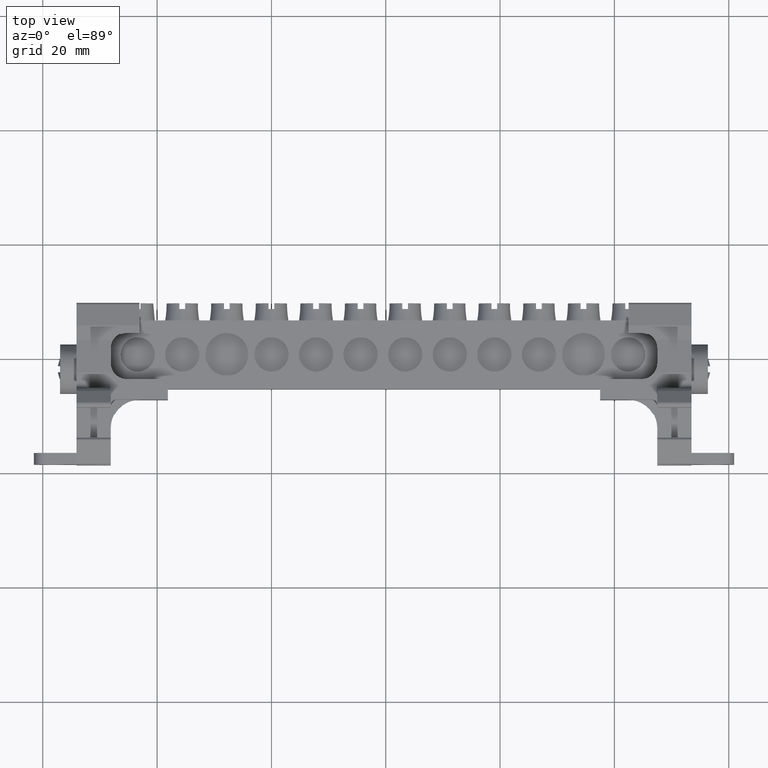
[diagram: clean part render]
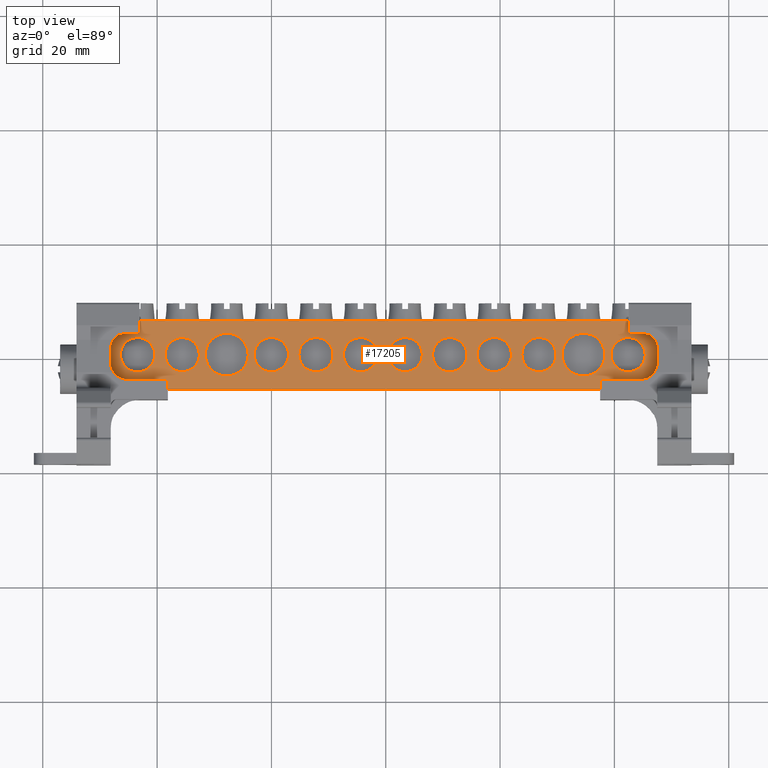
[diagram: same view with one face highlighted and labeled with its STEP entity id]
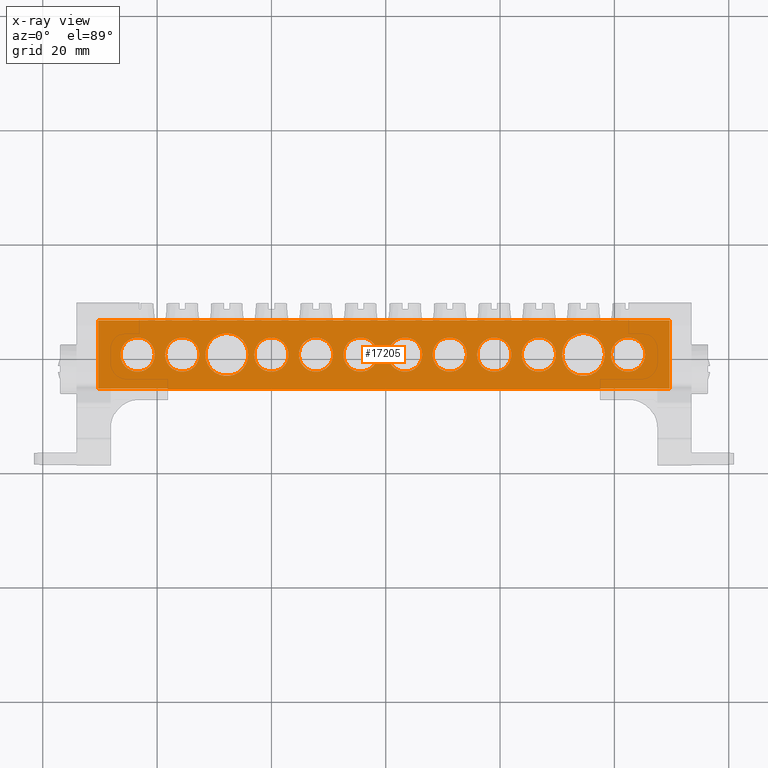
[diagram: x-ray of the same camera — body ghosted, the highlighted face saturated]
A machine part, top view. The second image highlights one B-rep face of the part: STEP entity #17205.
The next image is the same camera in x-ray: the body ghosted, the highlighted face saturated — about 0% of this face is hidden behind the body in this view.
In plain terms, the highlighted planar face has unit normal (0, 0, -1).
Its self-contained STEP definition (entity closure, byte-faithful):
#1337 = CIRCLE ( 'NONE', #1354, 3.000000000000002700 ) ;
#1348 = CIRCLE ( 'NONE', #1349, 3.000000000000002700 ) ;
#1349 = AXIS2_PLACEMENT_3D ( 'NONE', #1574, #1576, #1609 ) ;
#1352 = CIRCLE ( 'NONE', #1355, 3.750000000000003600 ) ;
#1354 = AXIS2_PLACEMENT_3D ( 'NONE', #1610, #1600, #1587 ) ;
#1355 = AXIS2_PLACEMENT_3D ( 'NONE', #1598, #1616, #1604 ) ;
#1378 = CIRCLE ( 'NONE', #1379, 2.999999999999988900 ) ;
#1379 = AXIS2_PLACEMENT_3D ( 'NONE', #1647, #1644, #1634 ) ;
#1387 = AXIS2_PLACEMENT_3D ( 'NONE', #1650, #1627, #1623 ) ;
#1400 = CIRCLE ( 'NONE', #1387, 3.000000000000002700 ) ;
#1402 = AXIS2_PLACEMENT_3D ( 'NONE', #1660, #1661, #1676 ) ;
#1412 = AXIS2_PLACEMENT_3D ( 'NONE', #1696, #1672, #1678 ) ;
#1416 = CIRCLE ( 'NONE', #1402, 3.000000000000002700 ) ;
#1425 = CIRCLE ( 'NONE', #1412, 3.000000000000002700 ) ;
#1574 = CARTESIAN_POINT ( 'NONE',  ( -100.0053964936863900, -39.46391012921964900, 99.25723811290720300 ) ) ;
#1576 = DIRECTION ( 'NONE',  ( 0.0000000000000000000, 0.0000000000000000000, 1.000000000000000000 ) ) ;
#1587 = DIRECTION ( 'NONE',  ( -1.000000000000000000, 0.0000000000000000000, 0.0000000000000000000 ) ) ;
#1598 = CARTESIAN_POINT ( 'NONE',  ( -107.8053964936864000, -39.46391012921964900, 99.25723811290720300 ) ) ;
#1600 = DIRECTION ( 'NONE',  ( 0.0000000000000000000, 0.0000000000000000000, 1.000000000000000000 ) ) ;
#1604 = DIRECTION ( 'NONE',  ( 1.000000000000000000, 0.0000000000000000000, 0.0000000000000000000 ) ) ;
#1609 = DIRECTION ( 'NONE',  ( -1.000000000000000000, 0.0000000000000000000, 0.0000000000000000000 ) ) ;
#1610 = CARTESIAN_POINT ( 'NONE',  ( -92.20539649368639300, -39.46391012921964900, 99.25723811290720300 ) ) ;
#1616 = DIRECTION ( 'NONE',  ( 0.0000000000000000000, 0.0000000000000000000, 1.000000000000000000 ) ) ;
#1623 = DIRECTION ( 'NONE',  ( 1.000000000000000000, 0.0000000000000000000, 0.0000000000000000000 ) ) ;
#1627 = DIRECTION ( 'NONE',  ( 0.0000000000000000000, 0.0000000000000000000, 1.000000000000000000 ) ) ;
#1634 = DIRECTION ( 'NONE',  ( 1.000000000000000000, 0.0000000000000000000, 4.625929269271502700E-015 ) ) ;
#1644 = DIRECTION ( 'NONE',  ( -4.941704111849990700E-015, -5.494598894041890000E-029, 1.000000000000000000 ) ) ;
#1647 = CARTESIAN_POINT ( 'NONE',  ( -123.4053964936861500, -39.46391012922060100, 99.25723811290699000 ) ) ;
#1650 = CARTESIAN_POINT ( 'NONE',  ( -115.6053964936864000, -39.46391012921964900, 99.25723811290720300 ) ) ;
#1660 = CARTESIAN_POINT ( 'NONE',  ( -37.60539649368644200, -39.46391012921964900, 99.25723811290720300 ) ) ;
#1661 = DIRECTION ( 'NONE',  ( 0.0000000000000000000, 0.0000000000000000000, 1.000000000000000000 ) ) ;
#1672 = DIRECTION ( 'NONE',  ( 0.0000000000000000000, 0.0000000000000000000, 1.000000000000000000 ) ) ;
#1676 = DIRECTION ( 'NONE',  ( 1.000000000000000000, 0.0000000000000000000, 0.0000000000000000000 ) ) ;
#1678 = DIRECTION ( 'NONE',  ( -1.000000000000000000, 0.0000000000000000000, 0.0000000000000000000 ) ) ;
#1696 = CARTESIAN_POINT ( 'NONE',  ( -76.60539649368639900, -39.46391012921964900, 99.25723811290720300 ) ) ;
#1702 = CARTESIAN_POINT ( 'NONE',  ( -89.20539649368639300, -39.46391012921964900, 99.25723811290720300 ) ) ;
#1715 = CARTESIAN_POINT ( 'NONE',  ( -79.60539649368639900, -39.46391012921964900, 99.25723811290720300 ) ) ;
#1755 = CARTESIAN_POINT ( 'NONE',  ( -95.20539649368639300, -39.46391012921964900, 99.25723811290720300 ) ) ;
#1777 = CARTESIAN_POINT ( 'NONE',  ( -81.40539649368642500, -39.46391012921964900, 99.25723811290720300 ) ) ;
#1778 = CARTESIAN_POINT ( 'NONE',  ( -73.60539649368639900, -39.46391012921964900, 99.25723811290720300 ) ) ;
#1779 = CARTESIAN_POINT ( 'NONE',  ( -97.00539649368639100, -39.46391012921964900, 99.25723811290720300 ) ) ;
#1782 = CARTESIAN_POINT ( 'NONE',  ( -87.40539649368643900, -39.46391012921964900, 99.25723811290720300 ) ) ;
#1786 = CARTESIAN_POINT ( 'NONE',  ( -118.6053964936864000, -39.46391012921964900, 99.25723811290720300 ) ) ;
#1789 = CARTESIAN_POINT ( 'NONE',  ( -65.80539649368640200, -39.46391012921964900, 99.25723811290720300 ) ) ;
#1792 = CARTESIAN_POINT ( 'NONE',  ( -71.80539649368640200, -39.46391012921964900, 99.25723811290720300 ) ) ;
#1796 = CARTESIAN_POINT ( 'NONE',  ( -34.60539649368644200, -39.46391012921964900, 99.25723811290720300 ) ) ;
#1814 = CARTESIAN_POINT ( 'NONE',  ( -56.20539649368640100, -39.46391012921964900, 99.25723811290720300 ) ) ;
#1829 = CARTESIAN_POINT ( 'NONE',  ( -126.4053964936861500, -39.46391012922060100, 99.25723811290697500 ) ) ;
#1835 = CARTESIAN_POINT ( 'NONE',  ( -40.60539649368644900, -39.46391012921964900, 99.25723811290720300 ) ) ;
#1836 = CARTESIAN_POINT ( 'NONE',  ( -41.65539649368639600, -39.46391012921964900, 99.25723811290720300 ) ) ;
#1838 = CARTESIAN_POINT ( 'NONE',  ( -112.6053964936864000, -39.46391012921964900, 99.25723811290720300 ) ) ;
#1845 = CARTESIAN_POINT ( 'NONE',  ( -104.0553964936864000, -39.46391012921964900, 99.25723811290720300 ) ) ;
#1849 = CARTESIAN_POINT ( 'NONE',  ( -111.5553964936864200, -39.46391012921964900, 99.25723811290720300 ) ) ;
#1851 = CARTESIAN_POINT ( 'NONE',  ( -64.00539649368640500, -39.46391012921964900, 99.25723811290720300 ) ) ;
#1856 = CARTESIAN_POINT ( 'NONE',  ( -103.0053964936863900, -39.46391012921964900, 99.25723811290720300 ) ) ;
#1869 = CARTESIAN_POINT ( 'NONE',  ( -120.4053964936861500, -39.46391012922060100, 99.25723811290700400 ) ) ;
#1873 = CARTESIAN_POINT ( 'NONE',  ( -49.15539649368640300, -39.46391012921964900, 99.25723811290720300 ) ) ;
#1920 = CARTESIAN_POINT ( 'NONE',  ( -50.20539649368639300, -39.46391012921964900, 99.25723811290720300 ) ) ;
#1930 = CARTESIAN_POINT ( 'NONE',  ( -58.00539649368639800, -39.46391012921964900, 99.25723811290720300 ) ) ;
#2708 = CARTESIAN_POINT ( 'NONE',  ( -61.00539649368639800, -39.46391012921964900, 99.25723811290720300 ) ) ;
#2738 = DIRECTION ( 'NONE',  ( 0.0000000000000000000, 0.0000000000000000000, 1.000000000000000000 ) ) ;
#2756 = DIRECTION ( 'NONE',  ( -1.000000000000000000, 0.0000000000000000000, 0.0000000000000000000 ) ) ;
#2764 = DIRECTION ( 'NONE',  ( 0.0000000000000000000, 0.0000000000000000000, 1.000000000000000000 ) ) ;
#2768 = CARTESIAN_POINT ( 'NONE',  ( -53.20539649368640100, -39.46391012921964900, 99.25723811290720300 ) ) ;
#2798 = DIRECTION ( 'NONE',  ( 1.000000000000000000, 0.0000000000000000000, 0.0000000000000000000 ) ) ;
#2810 = CARTESIAN_POINT ( 'NONE',  ( -84.40539649368643900, -39.46391012921964900, 99.25723811290720300 ) ) ;
#2844 = DIRECTION ( 'NONE',  ( 0.0000000000000000000, 0.0000000000000000000, 1.000000000000000000 ) ) ;
#2846 = DIRECTION ( 'NONE',  ( -1.000000000000000000, 0.0000000000000000000, 0.0000000000000000000 ) ) ;
#2853 = DIRECTION ( 'NONE',  ( 1.000000000000000000, 0.0000000000000000000, 0.0000000000000000000 ) ) ;
#2870 = CARTESIAN_POINT ( 'NONE',  ( -45.40539649368639600, -39.46391012921964900, 99.25723811290720300 ) ) ;
#2872 = DIRECTION ( 'NONE',  ( 0.0000000000000000000, 0.0000000000000000000, 1.000000000000000000 ) ) ;
#3945 = CIRCLE ( 'NONE', #3972, 3.000000000000002700 ) ;
#3972 = AXIS2_PLACEMENT_3D ( 'NONE', #11579, #11573, #11576 ) ;
#4788 = CARTESIAN_POINT ( 'NONE',  ( -42.50539649368585800, -45.09798989761807100, 99.25723811290720300 ) ) ;
#4793 = LINE ( 'NONE', #4788, #23720 ) ;
#4796 = DIRECTION ( 'NONE',  ( 1.100161628464490100E-014, -1.000000000000000000, 0.0000000000000000000 ) ) ;
#4798 = CARTESIAN_POINT ( 'NONE',  ( -100.0053964936863900, -39.46391012921964900, 99.25723811290720300 ) ) ;
#4801 = DIRECTION ( 'NONE',  ( 0.0000000000000000000, 0.0000000000000000000, 1.000000000000000000 ) ) ;
#4820 = DIRECTION ( 'NONE',  ( -1.000000000000000000, 0.0000000000000000000, 0.0000000000000000000 ) ) ;
#4838 = DIRECTION ( 'NONE',  ( -1.000000000000000000, 0.0000000000000000000, 0.0000000000000000000 ) ) ;
#4848 = DIRECTION ( 'NONE',  ( 0.0000000000000000000, 0.0000000000000000000, 1.000000000000000000 ) ) ;
#4850 = DIRECTION ( 'NONE',  ( 0.0000000000000000000, 0.0000000000000000000, 1.000000000000000000 ) ) ;
#4852 = LINE ( 'NONE', #4875, #23708 ) ;
#4855 = CARTESIAN_POINT ( 'NONE',  ( -107.8053964936864000, -39.46391012921964900, 99.25723811290720300 ) ) ;
#4860 = DIRECTION ( 'NONE',  ( 1.000000000000000000, 0.0000000000000000000, 0.0000000000000000000 ) ) ;
#4862 = CARTESIAN_POINT ( 'NONE',  ( -68.80539649368640200, -39.46391012921964900, 99.25723811290720300 ) ) ;
#4866 = DIRECTION ( 'NONE',  ( -1.000000000000000000, 0.0000000000000000000, -4.941704111849990700E-015 ) ) ;
#4875 = CARTESIAN_POINT ( 'NONE',  ( -69.80539649368628800, -45.45958989761835100, 99.25723811290724500 ) ) ;
#4879 = DIRECTION ( 'NONE',  ( -1.000000000000000000, 0.0000000000000000000, 0.0000000000000000000 ) ) ;
#4887 = DIRECTION ( 'NONE',  ( 0.0000000000000000000, 0.0000000000000000000, 1.000000000000000000 ) ) ;
#4888 = DIRECTION ( 'NONE',  ( -1.000000000000000000, 0.0000000000000000000, 0.0000000000000000000 ) ) ;
#4889 = CARTESIAN_POINT ( 'NONE',  ( -130.3053964936860600, -33.46391012921941400, 99.25723811290694700 ) ) ;
#4890 = DIRECTION ( 'NONE',  ( -2.715268194765322000E-043, 1.000000000000000000, 5.494598894041890000E-029 ) ) ;
#4893 = DIRECTION ( 'NONE',  ( -4.941704111849990700E-015, -5.494598894041890000E-029, 1.000000000000000000 ) ) ;
#4896 = CARTESIAN_POINT ( 'NONE',  ( -123.4053964936861500, -39.46391012922060100, 99.25723811290699000 ) ) ;
#4900 = CARTESIAN_POINT ( 'NONE',  ( -76.60539649368639900, -39.46391012921964900, 99.25723811290720300 ) ) ;
#4914 = DIRECTION ( 'NONE',  ( 1.000000000000000000, 0.0000000000000000000, 0.0000000000000000000 ) ) ;
#4915 = CARTESIAN_POINT ( 'NONE',  ( -84.40539649368643900, -39.46391012921964900, 99.25723811290720300 ) ) ;
#4916 = LINE ( 'NONE', #4889, #23679 ) ;
#4917 = DIRECTION ( 'NONE',  ( 0.0000000000000000000, 0.0000000000000000000, 1.000000000000000000 ) ) ;
#4919 = DIRECTION ( 'NONE',  ( 0.0000000000000000000, 0.0000000000000000000, 1.000000000000000000 ) ) ;
#4921 = CARTESIAN_POINT ( 'NONE',  ( -45.40539649368639600, -39.46391012921964900, 99.25723811290720300 ) ) ;
#4922 = DIRECTION ( 'NONE',  ( 1.000000000000000000, 0.0000000000000000000, 4.625929269271502700E-015 ) ) ;
#9744 = EDGE_CURVE ( 'NONE', #10948, #10944, #3945, .T. ) ;
#10061 = EDGE_CURVE ( 'NONE', #10978, #10900, #1348, .T. ) ;
#10064 = EDGE_CURVE ( 'NONE', #10961, #10882, #1337, .T. ) ;
#10065 = EDGE_CURVE ( 'NONE', #11001, #10982, #1352, .T. ) ;
#10074 = EDGE_CURVE ( 'NONE', #10965, #10993, #1378, .T. ) ;
#10079 = EDGE_CURVE ( 'NONE', #10897, #10995, #1400, .T. ) ;
#10087 = EDGE_CURVE ( 'NONE', #10985, #10952, #1416, .T. ) ;
#10093 = EDGE_CURVE ( 'NONE', #10888, #10921, #1425, .T. ) ;
#10133 = EDGE_LOOP ( 'NONE', ( #19084, #19085 ) ) ;
#10134 = EDGE_LOOP ( 'NONE', ( #19200, #19110 ) ) ;
#10140 = EDGE_LOOP ( 'NONE', ( #19046, #19087 ) ) ;
#10146 = EDGE_LOOP ( 'NONE', ( #19039, #19047 ) ) ;
#10155 = EDGE_LOOP ( 'NONE', ( #19151, #19076 ) ) ;
#10157 = EDGE_LOOP ( 'NONE', ( #19149, #19100, #19106, #19142, #19153, #19188, #19098, #19108 ) ) ;
#10162 = EDGE_LOOP ( 'NONE', ( #19034, #19072 ) ) ;
#10167 = EDGE_LOOP ( 'NONE', ( #19154, #19137 ) ) ;
#10170 = EDGE_LOOP ( 'NONE', ( #19038, #19033 ) ) ;
#10177 = EDGE_LOOP ( 'NONE', ( #19141, #19109 ) ) ;
#10186 = EDGE_LOOP ( 'NONE', ( #19030, #19058 ) ) ;
#10196 = EDGE_LOOP ( 'NONE', ( #19052, #19152 ) ) ;
#10213 = EDGE_LOOP ( 'NONE', ( #19081, #19082 ) ) ;
#10882 = VERTEX_POINT ( 'NONE', #1702 ) ;
#10888 = VERTEX_POINT ( 'NONE', #1715 ) ;
#10897 = VERTEX_POINT ( 'NONE', #1786 ) ;
#10900 = VERTEX_POINT ( 'NONE', #1779 ) ;
#10916 = VERTEX_POINT ( 'NONE', #1777 ) ;
#10921 = VERTEX_POINT ( 'NONE', #1778 ) ;
#10930 = VERTEX_POINT ( 'NONE', #1782 ) ;
#10944 = VERTEX_POINT ( 'NONE', #1789 ) ;
#10948 = VERTEX_POINT ( 'NONE', #1792 ) ;
#10952 = VERTEX_POINT ( 'NONE', #1796 ) ;
#10961 = VERTEX_POINT ( 'NONE', #1755 ) ;
#10963 = VERTEX_POINT ( 'NONE', #1873 ) ;
#10965 = VERTEX_POINT ( 'NONE', #1829 ) ;
#10977 = VERTEX_POINT ( 'NONE', #1851 ) ;
#10978 = VERTEX_POINT ( 'NONE', #1856 ) ;
#10982 = VERTEX_POINT ( 'NONE', #1845 ) ;
#10985 = VERTEX_POINT ( 'NONE', #1835 ) ;
#10988 = VERTEX_POINT ( 'NONE', #1836 ) ;
#10993 = VERTEX_POINT ( 'NONE', #1869 ) ;
#10995 = VERTEX_POINT ( 'NONE', #1838 ) ;
#11001 = VERTEX_POINT ( 'NONE', #1849 ) ;
#11005 = VERTEX_POINT ( 'NONE', #1814 ) ;
#11027 = VERTEX_POINT ( 'NONE', #1920 ) ;
#11028 = VERTEX_POINT ( 'NONE', #1930 ) ;
#11573 = DIRECTION ( 'NONE',  ( 0.0000000000000000000, 0.0000000000000000000, 1.000000000000000000 ) ) ;
#11576 = DIRECTION ( 'NONE',  ( -1.000000000000000000, 0.0000000000000000000, 0.0000000000000000000 ) ) ;
#11579 = CARTESIAN_POINT ( 'NONE',  ( -68.80539649368640200, -39.46391012921964900, 99.25723811290720300 ) ) ;
#12179 = CARTESIAN_POINT ( 'NONE',  ( -118.1053964936866100, -45.46391012922023100, 99.25723811290701800 ) ) ;
#12190 = CARTESIAN_POINT ( 'NONE',  ( -130.3053964936860600, -45.45958989761972200, 99.25723811290699000 ) ) ;
#12198 = CARTESIAN_POINT ( 'NONE',  ( -30.30539649368639500, -45.45958989761822300, 99.25723811290726000 ) ) ;
#12203 = CARTESIAN_POINT ( 'NONE',  ( -42.50539649368586500, -45.45958989761870600, 99.25723811290730200 ) ) ;
#12211 = CARTESIAN_POINT ( 'NONE',  ( -130.3053964936862600, -33.46391012922075700, 99.25723811290696100 ) ) ;
#12212 = CARTESIAN_POINT ( 'NONE',  ( -118.1053964936866100, -45.45958989761971500, 99.25723811290703200 ) ) ;
#12214 = CARTESIAN_POINT ( 'NONE',  ( -42.50539649368585100, -45.46391012921924400, 99.25723811290726000 ) ) ;
#12216 = CARTESIAN_POINT ( 'NONE',  ( -30.30539649368639800, -33.46391012921964900, 99.25723811290714600 ) ) ;
#12332 = FACE_BOUND ( 'NONE', #10162, .T. ) ;
#12333 = FACE_BOUND ( 'NONE', #10155, .T. ) ;
#12336 = FACE_BOUND ( 'NONE', #10140, .T. ) ;
#12338 = PLANE ( 'NONE',  #23976 ) ;
#12340 = DIRECTION ( 'NONE',  ( -1.000000000000000000, 0.0000000000000000000, -4.941704111849990700E-015 ) ) ;
#12342 = FACE_BOUND ( 'NONE', #10167, .T. ) ;
#12349 = DIRECTION ( 'NONE',  ( 4.941704111849990700E-015, 5.494598894041890000E-029, -1.000000000000000000 ) ) ;
#12359 = CARTESIAN_POINT ( 'NONE',  ( -69.80539649368628800, -33.46391012921941400, 99.25723811290724500 ) ) ;
#12367 = FACE_BOUND ( 'NONE', #10196, .T. ) ;
#12368 = FACE_BOUND ( 'NONE', #10146, .T. ) ;
#12369 = FACE_BOUND ( 'NONE', #10186, .T. ) ;
#12370 = FACE_BOUND ( 'NONE', #10134, .T. ) ;
#12371 = FACE_OUTER_BOUND ( 'NONE', #10157, .T. ) ;
#12372 = FACE_BOUND ( 'NONE', #10213, .T. ) ;
#12376 = FACE_BOUND ( 'NONE', #10177, .T. ) ;
#12379 = FACE_BOUND ( 'NONE', #10170, .T. ) ;
#12380 = FACE_BOUND ( 'NONE', #10133, .T. ) ;
#12926 = CARTESIAN_POINT ( 'NONE',  ( -118.1053964936866100, -45.09798989761890900, 99.25723811290701800 ) ) ;
#12937 = DIRECTION ( 'NONE',  ( -1.123605221868002000E-014, 1.000000000000000000, 0.0000000000000000000 ) ) ;
#12942 = LINE ( 'NONE', #12926, #23620 ) ;
#12963 = DIRECTION ( 'NONE',  ( 0.0000000000000000000, 0.0000000000000000000, 1.000000000000000000 ) ) ;
#12966 = DIRECTION ( 'NONE',  ( -1.000000000000000000, 0.0000000000000000000, -4.941704111849990700E-015 ) ) ;
#12967 = CARTESIAN_POINT ( 'NONE',  ( -61.00539649368639800, -39.46391012921964900, 99.25723811290720300 ) ) ;
#12968 = DIRECTION ( 'NONE',  ( 0.0000000000000000000, 0.0000000000000000000, 1.000000000000000000 ) ) ;
#12970 = LINE ( 'NONE', #12985, #23608 ) ;
#12971 = DIRECTION ( 'NONE',  ( 0.0000000000000000000, 0.0000000000000000000, 1.000000000000000000 ) ) ;
#12975 = DIRECTION ( 'NONE',  ( 1.000000000000000000, 0.0000000000000000000, 0.0000000000000000000 ) ) ;
#12976 = CARTESIAN_POINT ( 'NONE',  ( -92.20539649368639300, -39.46391012921964900, 99.25723811290720300 ) ) ;
#12985 = CARTESIAN_POINT ( 'NONE',  ( -69.80539649368628800, -45.46391012921959900, 99.25723811290724500 ) ) ;
#12991 = CARTESIAN_POINT ( 'NONE',  ( -115.6053964936864000, -39.46391012921964900, 99.25723811290720300 ) ) ;
#12994 = DIRECTION ( 'NONE',  ( -1.000000000000000000, 0.0000000000000000000, 0.0000000000000000000 ) ) ;
#12995 = DIRECTION ( 'NONE',  ( -1.000000000000000000, 0.0000000000000000000, 0.0000000000000000000 ) ) ;
#13009 = DIRECTION ( 'NONE',  ( 0.0000000000000000000, 0.0000000000000000000, 1.000000000000000000 ) ) ;
#13010 = CARTESIAN_POINT ( 'NONE',  ( -53.20539649368640100, -39.46391012921964900, 99.25723811290720300 ) ) ;
#13011 = DIRECTION ( 'NONE',  ( 0.0000000000000000000, 0.0000000000000000000, 1.000000000000000000 ) ) ;
#13012 = DIRECTION ( 'NONE',  ( 1.000000000000000000, 0.0000000000000000000, 0.0000000000000000000 ) ) ;
#13014 = CARTESIAN_POINT ( 'NONE',  ( -30.30539649368639500, -33.46391012921941400, 99.25723811290744400 ) ) ;
#13023 = CARTESIAN_POINT ( 'NONE',  ( -37.60539649368644200, -39.46391012921964900, 99.25723811290720300 ) ) ;
#13027 = LINE ( 'NONE', #13014, #23622 ) ;
#13028 = DIRECTION ( 'NONE',  ( 2.715268194765322000E-043, -1.000000000000000000, -5.494598894041890000E-029 ) ) ;
#13030 = CARTESIAN_POINT ( 'NONE',  ( -69.80539649368628800, -33.46391012922075700, 99.25723811290724500 ) ) ;
#13031 = DIRECTION ( 'NONE',  ( 1.000000000000000000, -0.0000000000000000000, 4.941704111849990700E-015 ) ) ;
#13044 = DIRECTION ( 'NONE',  ( 1.000000000000000000, 0.0000000000000000000, 0.0000000000000000000 ) ) ;
#13047 = LINE ( 'NONE', #13030, #23638 ) ;
#13386 = LINE ( 'NONE', #13404, #23463 ) ;
#13404 = CARTESIAN_POINT ( 'NONE',  ( -69.80539649368628800, -45.45958989761970100, 99.25723811290724500 ) ) ;
#13413 = DIRECTION ( 'NONE',  ( -1.000000000000000000, 0.0000000000000000000, -4.941704111849990700E-015 ) ) ;
#14741 = EDGE_CURVE ( 'NONE', #10977, #11028, #23020, .T. ) ;
#14756 = EDGE_CURVE ( 'NONE', #11005, #11027, #23026, .T. ) ;
#14777 = EDGE_CURVE ( 'NONE', #10930, #10916, #22996, .T. ) ;
#14788 = EDGE_CURVE ( 'NONE', #10963, #10988, #23064, .T. ) ;
#15532 = EDGE_CURVE ( 'NONE', #17680, #17688, #13386, .T. ) ;
#15898 = EDGE_CURVE ( 'NONE', #17686, #17680, #12942, .T. ) ;
#15900 = EDGE_CURVE ( 'NONE', #11028, #10977, #23652, .T. ) ;
#15914 = EDGE_CURVE ( 'NONE', #10882, #10961, #23607, .T. ) ;
#15917 = EDGE_CURVE ( 'NONE', #17720, #17686, #12970, .T. ) ;
#15921 = EDGE_CURVE ( 'NONE', #10995, #10897, #23615, .T. ) ;
#15937 = EDGE_CURVE ( 'NONE', #17679, #17689, #13027, .T. ) ;
#15943 = EDGE_CURVE ( 'NONE', #17672, #17679, #13047, .T. ) ;
#15947 = EDGE_CURVE ( 'NONE', #10952, #10985, #23603, .T. ) ;
#15950 = EDGE_CURVE ( 'NONE', #11027, #11005, #23640, .T. ) ;
#15963 = EDGE_CURVE ( 'NONE', #17714, #17720, #4793, .T. ) ;
#15980 = EDGE_CURVE ( 'NONE', #10900, #10978, #23672, .T. ) ;
#15985 = EDGE_CURVE ( 'NONE', #10982, #11001, #23715, .T. ) ;
#15991 = EDGE_CURVE ( 'NONE', #10944, #10948, #23717, .T. ) ;
#15996 = EDGE_CURVE ( 'NONE', #17689, #17714, #4852, .T. ) ;
#16010 = EDGE_CURVE ( 'NONE', #10993, #10965, #23677, .T. ) ;
#16014 = EDGE_CURVE ( 'NONE', #10988, #10963, #23709, .T. ) ;
#16018 = EDGE_CURVE ( 'NONE', #17688, #17672, #4916, .T. ) ;
#16023 = EDGE_CURVE ( 'NONE', #10916, #10930, #23691, .T. ) ;
#16030 = EDGE_CURVE ( 'NONE', #10921, #10888, #23674, .T. ) ;
#17205 = ADVANCED_FACE ( 'NONE', ( #12379, #12367, #12332, #12380, #12369, #12333, #12336, #12368, #12372, #12376, #12342, #12370, #12371 ), #12338, .F. ) ;
#17672 = VERTEX_POINT ( 'NONE', #12211 ) ;
#17679 = VERTEX_POINT ( 'NONE', #12216 ) ;
#17680 = VERTEX_POINT ( 'NONE', #12212 ) ;
#17686 = VERTEX_POINT ( 'NONE', #12179 ) ;
#17688 = VERTEX_POINT ( 'NONE', #12190 ) ;
#17689 = VERTEX_POINT ( 'NONE', #12198 ) ;
#17714 = VERTEX_POINT ( 'NONE', #12203 ) ;
#17720 = VERTEX_POINT ( 'NONE', #12214 ) ;
#19030 = ORIENTED_EDGE ( 'NONE', *, *, #10064, .F. ) ;
#19033 = ORIENTED_EDGE ( 'NONE', *, *, #10087, .F. ) ;
#19034 = ORIENTED_EDGE ( 'NONE', *, *, #15921, .F. ) ;
#19038 = ORIENTED_EDGE ( 'NONE', *, *, #15947, .F. ) ;
#19039 = ORIENTED_EDGE ( 'NONE', *, *, #15950, .F. ) ;
#19046 = ORIENTED_EDGE ( 'NONE', *, *, #10093, .F. ) ;
#19047 = ORIENTED_EDGE ( 'NONE', *, *, #14756, .F. ) ;
#19052 = ORIENTED_EDGE ( 'NONE', *, *, #15985, .F. ) ;
#19058 = ORIENTED_EDGE ( 'NONE', *, *, #15914, .F. ) ;
#19072 = ORIENTED_EDGE ( 'NONE', *, *, #10079, .F. ) ;
#19076 = ORIENTED_EDGE ( 'NONE', *, *, #16023, .F. ) ;
#19081 = ORIENTED_EDGE ( 'NONE', *, *, #16014, .F. ) ;
#19082 = ORIENTED_EDGE ( 'NONE', *, *, #14788, .F. ) ;
#19084 = ORIENTED_EDGE ( 'NONE', *, *, #10061, .F. ) ;
#19085 = ORIENTED_EDGE ( 'NONE', *, *, #15980, .F. ) ;
#19087 = ORIENTED_EDGE ( 'NONE', *, *, #16030, .F. ) ;
#19098 = ORIENTED_EDGE ( 'NONE', *, *, #15898, .F. ) ;
#19100 = ORIENTED_EDGE ( 'NONE', *, *, #15996, .F. ) ;
#19106 = ORIENTED_EDGE ( 'NONE', *, *, #15937, .F. ) ;
#19108 = ORIENTED_EDGE ( 'NONE', *, *, #15917, .F. ) ;
#19109 = ORIENTED_EDGE ( 'NONE', *, *, #15900, .F. ) ;
#19110 = ORIENTED_EDGE ( 'NONE', *, *, #10074, .F. ) ;
#19137 = ORIENTED_EDGE ( 'NONE', *, *, #15991, .F. ) ;
#19141 = ORIENTED_EDGE ( 'NONE', *, *, #14741, .F. ) ;
#19142 = ORIENTED_EDGE ( 'NONE', *, *, #15943, .F. ) ;
#19149 = ORIENTED_EDGE ( 'NONE', *, *, #15963, .F. ) ;
#19151 = ORIENTED_EDGE ( 'NONE', *, *, #14777, .F. ) ;
#19152 = ORIENTED_EDGE ( 'NONE', *, *, #10065, .F. ) ;
#19153 = ORIENTED_EDGE ( 'NONE', *, *, #16018, .F. ) ;
#19154 = ORIENTED_EDGE ( 'NONE', *, *, #9744, .F. ) ;
#19188 = ORIENTED_EDGE ( 'NONE', *, *, #15532, .F. ) ;
#19200 = ORIENTED_EDGE ( 'NONE', *, *, #16010, .F. ) ;
#22996 = CIRCLE ( 'NONE', #23008, 3.000000000000002700 ) ;
#23008 = AXIS2_PLACEMENT_3D ( 'NONE', #2810, #2844, #2846 ) ;
#23016 = AXIS2_PLACEMENT_3D ( 'NONE', #2708, #2738, #2756 ) ;
#23020 = CIRCLE ( 'NONE', #23016, 3.000000000000002700 ) ;
#23026 = CIRCLE ( 'NONE', #23043, 3.000000000000002700 ) ;
#23043 = AXIS2_PLACEMENT_3D ( 'NONE', #2768, #2764, #2798 ) ;
#23064 = CIRCLE ( 'NONE', #23106, 3.750000000000003600 ) ;
#23106 = AXIS2_PLACEMENT_3D ( 'NONE', #2870, #2872, #2853 ) ;
#23463 = VECTOR ( 'NONE', #13413, 1000.000000000000000 ) ;
#23603 = CIRCLE ( 'NONE', #23631, 3.000000000000002700 ) ;
#23607 = CIRCLE ( 'NONE', #23618, 3.000000000000002700 ) ;
#23608 = VECTOR ( 'NONE', #12966, 1000.000000000000000 ) ;
#23615 = CIRCLE ( 'NONE', #23616, 3.000000000000002700 ) ;
#23616 = AXIS2_PLACEMENT_3D ( 'NONE', #12991, #12968, #12975 ) ;
#23618 = AXIS2_PLACEMENT_3D ( 'NONE', #12976, #12971, #12995 ) ;
#23620 = VECTOR ( 'NONE', #12937, 1000.000000000000000 ) ;
#23622 = VECTOR ( 'NONE', #13028, 1000.000000000000000 ) ;
#23631 = AXIS2_PLACEMENT_3D ( 'NONE', #13023, #13009, #13044 ) ;
#23638 = VECTOR ( 'NONE', #13031, 1000.000000000000000 ) ;
#23640 = CIRCLE ( 'NONE', #23641, 3.000000000000002700 ) ;
#23641 = AXIS2_PLACEMENT_3D ( 'NONE', #13010, #13011, #13012 ) ;
#23652 = CIRCLE ( 'NONE', #23658, 3.000000000000002700 ) ;
#23658 = AXIS2_PLACEMENT_3D ( 'NONE', #12967, #12963, #12994 ) ;
#23664 = AXIS2_PLACEMENT_3D ( 'NONE', #4915, #4887, #4879 ) ;
#23670 = AXIS2_PLACEMENT_3D ( 'NONE', #4896, #4893, #4922 ) ;
#23672 = CIRCLE ( 'NONE', #23724, 3.000000000000002700 ) ;
#23674 = CIRCLE ( 'NONE', #23675, 3.000000000000002700 ) ;
#23675 = AXIS2_PLACEMENT_3D ( 'NONE', #4900, #4919, #4888 ) ;
#23677 = CIRCLE ( 'NONE', #23670, 2.999999999999988900 ) ;
#23679 = VECTOR ( 'NONE', #4890, 1000.000000000000000 ) ;
#23689 = AXIS2_PLACEMENT_3D ( 'NONE', #4862, #4850, #4838 ) ;
#23691 = CIRCLE ( 'NONE', #23664, 3.000000000000002700 ) ;
#23705 = AXIS2_PLACEMENT_3D ( 'NONE', #4921, #4917, #4914 ) ;
#23708 = VECTOR ( 'NONE', #4866, 1000.000000000000000 ) ;
#23709 = CIRCLE ( 'NONE', #23705, 3.750000000000003600 ) ;
#23715 = CIRCLE ( 'NONE', #23722, 3.750000000000003600 ) ;
#23717 = CIRCLE ( 'NONE', #23689, 3.000000000000002700 ) ;
#23720 = VECTOR ( 'NONE', #4796, 1000.000000000000000 ) ;
#23722 = AXIS2_PLACEMENT_3D ( 'NONE', #4855, #4848, #4860 ) ;
#23724 = AXIS2_PLACEMENT_3D ( 'NONE', #4798, #4801, #4820 ) ;
#23976 = AXIS2_PLACEMENT_3D ( 'NONE', #12359, #12349, #12340 ) ;